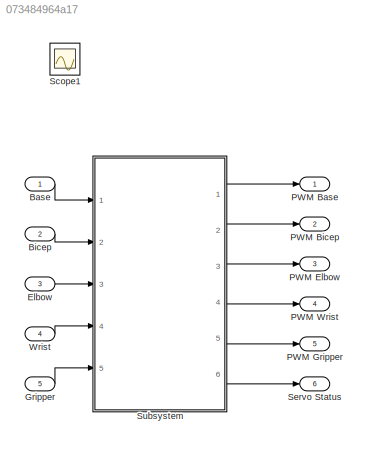
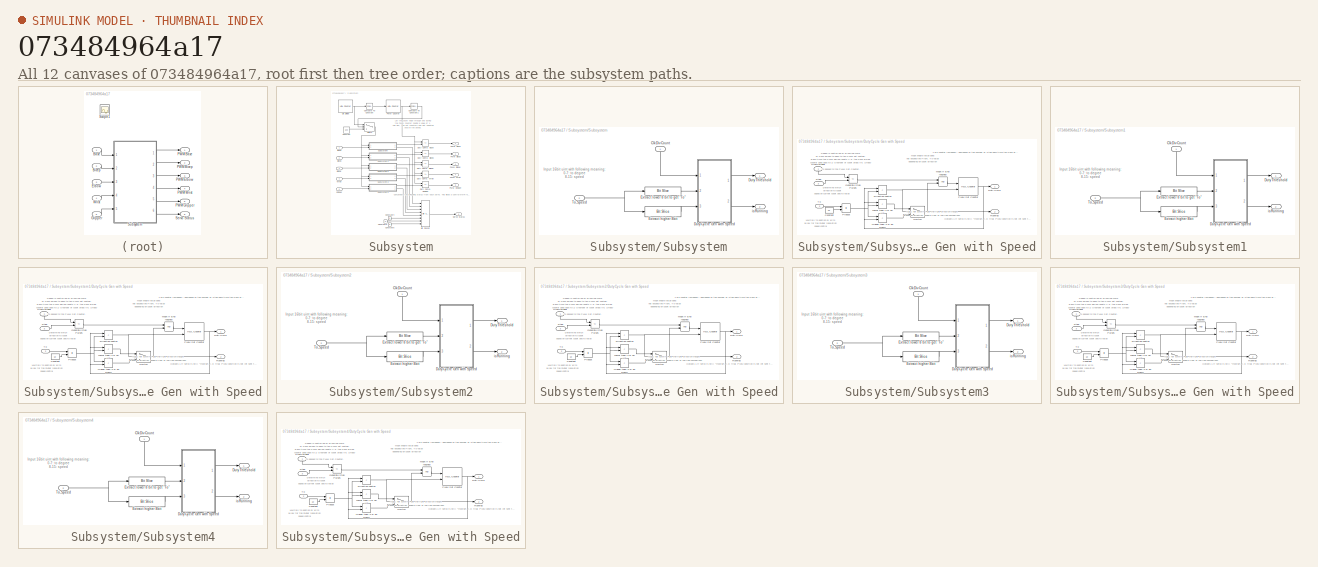
[diagram: thumbnail index - all 12 canvases of the model, root first then tree order]
MODEL slx_073484964a17
KIND model
BLOCK [Inport] Base
  IconDisplay = Port number
  OutDataTypeStr = uint16
  SampleTime = 1
BLOCK [Inport] Bicep
  IconDisplay = Port number
  OutDataTypeStr = uint16
  Port = 2
  SampleTime = 1
BLOCK [Inport] Elbow
  IconDisplay = Port number
  OutDataTypeStr = uint16
  Port = 3
  SampleTime = 1
BLOCK [Inport] Gripper
  IconDisplay = Port number
  OutDataTypeStr = uint16
  Port = 5
  SampleTime = 1
BLOCK [Outport] PWM Base
  IconDisplay = Port number
BLOCK [Outport] PWM Bicep
  IconDisplay = Port number
  Port = 2
BLOCK [Outport] PWM Elbow
  IconDisplay = Port number
  Port = 3
BLOCK [Outport] PWM Gripper
  IconDisplay = Port number
  Port = 5
BLOCK [Outport] PWM Wrist
  IconDisplay = Port number
  Port = 4
BLOCK [Scope] Scope1
  DataFormat = StructureWithTime
  Floating = off
  IOType = viewer
  NumInputPorts = 1
  Ports = []
  SampleTime = 0
  SaveName = ScopeData1
  ShowLegends = off
BLOCK [Outport] Servo Status
  IconDisplay = Port number
  Port = 6
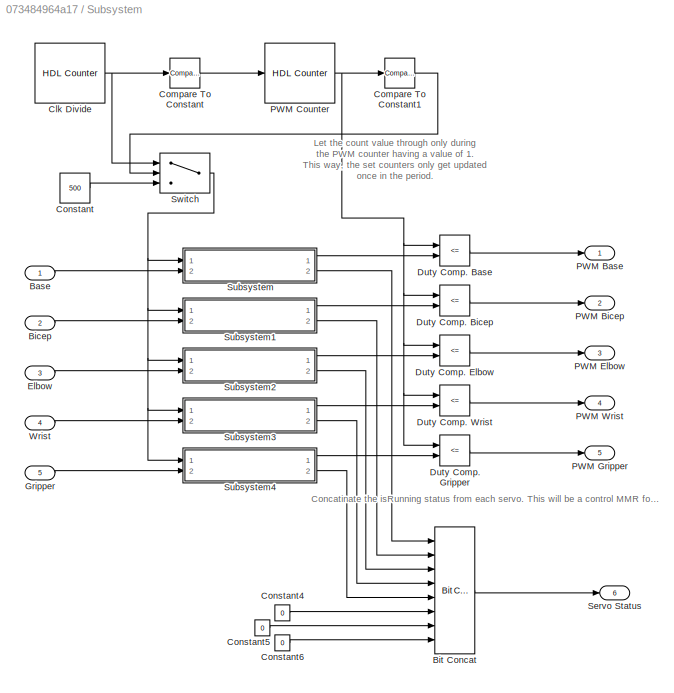
BLOCK [SubSystem] Subsystem
  Ports = [5, 6]
  RequestExecContextInheritance = off
  SystemSampleTime = 1
  TreatAsAtomicUnit = on
BLOCK [Inport] Subsystem/Base
  IconDisplay = Port number
  OutDataTypeStr = uint16
BLOCK [Inport] Subsystem/Bicep
  IconDisplay = Port number
  OutDataTypeStr = uint16
  Port = 2
BLOCK [Reference] Subsystem/Bit Concat  REF=hdlsllib/HDL Operations/Bit Concat
  Ports = [8, 1]
  SourceBlock = hdlsllib/HDL Operations/Bit Concat
  SourceType = Bit Concat
  numInputs = 8
BLOCK [Reference] Subsystem/Clk Divide  REF=hdlsllib/HDL Operations/HDL Counter
  CountDataType = Unsigned
  CountDirPort = off
  CountEnbPort = off
  CountFracLen = 0
  CountFrom = 1
  CountFromType = Initial value
  CountInit = 1
  CountLoadPort = off
  CountMax = 50
  CountResetPort = off
  CountSampTime = 1
  CountStep = 1
  CountType = Count limited
  CountWordLen = 16
  Ports = [0, 1]
  SourceBlock = hdlsllib/HDL Operations/HDL Counter
  SourceType = HDL Counter
BLOCK [Reference] Subsystem/Compare To Constant  REF=simulink/Logic and Bit
Operations/Compare
To Constant
  OutDataTypeStr = boolean
  Ports = [1, 1]
  SourceBlock = simulink/Logic and Bit\nOperations/Compare\nTo Constant
  SourceType = Compare To Constant
  ZeroCross = on
  const = 1
  relop = ==
BLOCK [Reference] Subsystem/Compare To Constant1  REF=simulink/Logic and Bit
Operations/Compare
To Constant
  OutDataTypeStr = boolean
  Ports = [1, 1]
  SourceBlock = simulink/Logic and Bit\nOperations/Compare\nTo Constant
  SourceType = Compare To Constant
  ZeroCross = on
  const = 1
  relop = ==
BLOCK [Constant] Subsystem/Constant
  OutDataTypeStr = int16
  Value = 500
BLOCK [Constant] Subsystem/Constant4
  OutDataTypeStr = boolean
  Value = 0
BLOCK [Constant] Subsystem/Constant5
  OutDataTypeStr = boolean
  Value = 0
BLOCK [Constant] Subsystem/Constant6
  OutDataTypeStr = boolean
  Value = 0
BLOCK [RelationalOperator] Subsystem/Duty Comp. Base
  InputSameDT = off
  Operator = <=
  OutDataTypeStr = boolean
  Ports = [2, 1]
BLOCK [RelationalOperator] Subsystem/Duty Comp. Bicep
  InputSameDT = off
  Operator = <=
  OutDataTypeStr = boolean
  Ports = [2, 1]
BLOCK [RelationalOperator] Subsystem/Duty Comp. Elbow
  InputSameDT = off
  Operator = <=
  OutDataTypeStr = boolean
  Ports = [2, 1]
BLOCK [RelationalOperator] Subsystem/Duty Comp. Gripper
  InputSameDT = off
  Operator = <=
  OutDataTypeStr = boolean
  Ports = [2, 1]
BLOCK [RelationalOperator] Subsystem/Duty Comp. Wrist
  InputSameDT = off
  Operator = <=
  OutDataTypeStr = boolean
  Ports = [2, 1]
BLOCK [Inport] Subsystem/Elbow
  IconDisplay = Port number
  OutDataTypeStr = uint16
  Port = 3
BLOCK [Inport] Subsystem/Gripper
  IconDisplay = Port number
  OutDataTypeStr = uint16
  Port = 5
BLOCK [Outport] Subsystem/PWM Base
  IconDisplay = Port number
BLOCK [Outport] Subsystem/PWM Bicep
  IconDisplay = Port number
  Port = 2
BLOCK [Reference] Subsystem/PWM Counter  REF=hdlsllib/HDL Operations/HDL Counter
  CountDataType = Unsigned
  CountDirPort = off
  CountEnbPort = on
  CountFracLen = 0
  CountFrom = 1
  CountFromType = Initial value
  CountInit = 1
  CountLoadPort = off
  CountMax = 20000
  CountResetPort = off
  CountSampTime = 1
  CountStep = 1
  CountType = Count limited
  CountWordLen = 16
  Ports = [1, 1]
  SourceBlock = hdlsllib/HDL Operations/HDL Counter
  SourceType = HDL Counter
BLOCK [Outport] Subsystem/PWM Elbow
  IconDisplay = Port number
  Port = 3
BLOCK [Outport] Subsystem/PWM Gripper
  IconDisplay = Port number
  Port = 5
BLOCK [Outport] Subsystem/PWM Wrist
  IconDisplay = Port number
  Port = 4
BLOCK [Outport] Subsystem/Servo Status 
  IconDisplay = Port number
  OutDataTypeStr = uint8
  Port = 6
BLOCK [SubSystem] Subsystem/Subsystem
  Ports = [2, 2]
  RequestExecContextInheritance = off
BLOCK [Inport] Subsystem/Subsystem/ClkDivCount
  IconDisplay = Port number
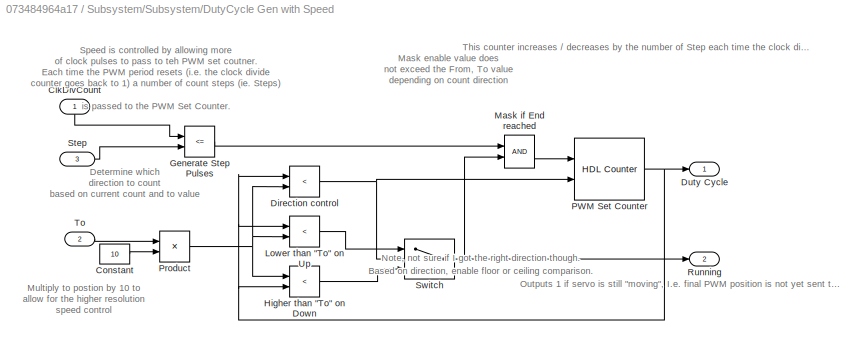
BLOCK [SubSystem] Subsystem/Subsystem/DutyCycle Gen with Speed
  Ports = [3, 2]
  RequestExecContextInheritance = off
BLOCK [Inport] Subsystem/Subsystem/DutyCycle Gen with Speed/ClkDivCount
  IconDisplay = Port number
BLOCK [Constant] Subsystem/Subsystem/DutyCycle Gen with Speed/Constant
  OutDataTypeStr = uint8
  SampleTime = Inf
  Value = 10
BLOCK [RelationalOperator] Subsystem/Subsystem/DutyCycle Gen with Speed/Direction control
  InputSameDT = off
  Operator = <
  OutDataTypeStr = boolean
  Ports = [2, 1]
BLOCK [Outport] Subsystem/Subsystem/DutyCycle Gen with Speed/Duty Cycle
  IconDisplay = Port number
BLOCK [RelationalOperator] Subsystem/Subsystem/DutyCycle Gen with Speed/Generate Step Pulses
  InputSameDT = off
  Operator = <=
  OutDataTypeStr = boolean
  Ports = [2, 1]
BLOCK [RelationalOperator] Subsystem/Subsystem/DutyCycle Gen with Speed/Higher than "To" on Down
  InputSameDT = off
  Operator = <
  OutDataTypeStr = boolean
  Ports = [2, 1]
BLOCK [RelationalOperator] Subsystem/Subsystem/DutyCycle Gen with Speed/Lower than "To" on Up
  InputSameDT = off
  Operator = <
  OutDataTypeStr = boolean
  Ports = [2, 1]
BLOCK [Logic] Subsystem/Subsystem/DutyCycle Gen with Speed/Mask if End reached
  AllPortsSameDT = off
  OutDataTypeStr = boolean
  Ports = [2, 1]
BLOCK [Reference] Subsystem/Subsystem/DutyCycle Gen with Speed/PWM Set Counter  REF=hdlsllib/HDL Operations/HDL Counter
  CountDataType = Unsigned
  CountDirPort = on
  CountEnbPort = on
  CountFracLen = 0
  CountFrom = 1500
  CountFromType = Initial value
  CountInit = 1500
  CountLoadPort = off
  CountMax = 256
  CountResetPort = off
  CountSampTime = 1
  CountStep = 1
  CountType = Free running
  CountWordLen = 16
  Ports = [2, 1]
  SourceBlock = hdlsllib/HDL Operations/HDL Counter
  SourceType = HDL Counter
BLOCK [Product] Subsystem/Subsystem/DutyCycle Gen with Speed/Product
  InputSameDT = off
  OutDataTypeStr = uint16
  Ports = [2, 1]
  RndMeth = Floor
  SaturateOnIntegerOverflow = off
BLOCK [Outport] Subsystem/Subsystem/DutyCycle Gen with Speed/Running
  IconDisplay = Port number
  Port = 2
BLOCK [Inport] Subsystem/Subsystem/DutyCycle Gen with Speed/Step
  IconDisplay = Port number
  OutDataTypeStr = uint8
  Port = 3
BLOCK [Switch] Subsystem/Subsystem/DutyCycle Gen with Speed/Switch
  Criteria = u2 ~= 0
  InputSameDT = off
  SaturateOnIntegerOverflow = off
BLOCK [Inport] Subsystem/Subsystem/DutyCycle Gen with Speed/To
  IconDisplay = Port number
  OutDataTypeStr = uint8
  Port = 2
BLOCK [Outport] Subsystem/Subsystem/DutyThreshold
  IconDisplay = Port number
BLOCK [Reference] Subsystem/Subsystem/Extract higher 8bit  REF=hdlsllib/HDL Operations/Bit Slice
  Ports = [1, 1]
  SourceBlock = hdlsllib/HDL Operations/Bit Slice
  SourceType = Bit Slice
  lidx = 15
  ridx = 8
BLOCK [Reference] Subsystem/Subsystem/Extract lower 8 bit to get "To"  REF=hdlsllib/HDL Operations/Bit Slice
  Ports = [1, 1]
  SourceBlock = hdlsllib/HDL Operations/Bit Slice
  SourceType = Bit Slice
  lidx = 7
  ridx = 0
BLOCK [Inport] Subsystem/Subsystem/To,Speed
  IconDisplay = Port number
  Port = 2
BLOCK [Outport] Subsystem/Subsystem/isRunning
  IconDisplay = Port number
  Port = 2
BLOCK [SubSystem] Subsystem/Subsystem1
  Ports = [2, 2]
  RequestExecContextInheritance = off
BLOCK [Inport] Subsystem/Subsystem1/ClkDivCount
  IconDisplay = Port number
BLOCK [SubSystem] Subsystem/Subsystem1/DutyCycle Gen with Speed
  Ports = [3, 2]
  RequestExecContextInheritance = off
BLOCK [Inport] Subsystem/Subsystem1/DutyCycle Gen with Speed/ClkDivCount
  IconDisplay = Port number
BLOCK [Constant] Subsystem/Subsystem1/DutyCycle Gen with Speed/Constant
  OutDataTypeStr = uint8
  SampleTime = Inf
  Value = 10
BLOCK [RelationalOperator] Subsystem/Subsystem1/DutyCycle Gen with Speed/Direction control
  InputSameDT = off
  Operator = <
  OutDataTypeStr = boolean
  Ports = [2, 1]
BLOCK [Outport] Subsystem/Subsystem1/DutyCycle Gen with Speed/Duty Cycle
  IconDisplay = Port number
BLOCK [RelationalOperator] Subsystem/Subsystem1/DutyCycle Gen with Speed/Generate Step Pulses
  InputSameDT = off
  Operator = <=
  OutDataTypeStr = boolean
  Ports = [2, 1]
BLOCK [RelationalOperator] Subsystem/Subsystem1/DutyCycle Gen with Speed/Higher than "To" on Down
  InputSameDT = off
  Operator = <
  OutDataTypeStr = boolean
  Ports = [2, 1]
BLOCK [RelationalOperator] Subsystem/Subsystem1/DutyCycle Gen with Speed/Lower than "To" on Up
  InputSameDT = off
  Operator = <
  OutDataTypeStr = boolean
  Ports = [2, 1]
BLOCK [Logic] Subsystem/Subsystem1/DutyCycle Gen with Speed/Mask if End reached
  AllPortsSameDT = off
  OutDataTypeStr = boolean
  Ports = [2, 1]
BLOCK [Reference] Subsystem/Subsystem1/DutyCycle Gen with Speed/PWM Set Counter  REF=hdlsllib/HDL Operations/HDL Counter
  CountDataType = Unsigned
  CountDirPort = on
  CountEnbPort = on
  CountFracLen = 0
  CountFrom = 1500
  CountFromType = Initial value
  CountInit = 1500
  CountLoadPort = off
  CountMax = 256
  CountResetPort = off
  CountSampTime = 1
  CountStep = 1
  CountType = Free running
  CountWordLen = 16
  Ports = [2, 1]
  SourceBlock = hdlsllib/HDL Operations/HDL Counter
  SourceType = HDL Counter
BLOCK [Product] Subsystem/Subsystem1/DutyCycle Gen with Speed/Product
  InputSameDT = off
  OutDataTypeStr = uint16
  Ports = [2, 1]
  RndMeth = Floor
  SaturateOnIntegerOverflow = off
BLOCK [Outport] Subsystem/Subsystem1/DutyCycle Gen with Speed/Running
  IconDisplay = Port number
  Port = 2
BLOCK [Inport] Subsystem/Subsystem1/DutyCycle Gen with Speed/Step
  IconDisplay = Port number
  OutDataTypeStr = uint8
  Port = 3
BLOCK [Switch] Subsystem/Subsystem1/DutyCycle Gen with Speed/Switch
  Criteria = u2 ~= 0
  InputSameDT = off
  SaturateOnIntegerOverflow = off
BLOCK [Inport] Subsystem/Subsystem1/DutyCycle Gen with Speed/To
  IconDisplay = Port number
  OutDataTypeStr = uint8
  Port = 2
BLOCK [Outport] Subsystem/Subsystem1/DutyThreshold
  IconDisplay = Port number
BLOCK [Reference] Subsystem/Subsystem1/Extract higher 8bit  REF=hdlsllib/HDL Operations/Bit Slice
  Ports = [1, 1]
  SourceBlock = hdlsllib/HDL Operations/Bit Slice
  SourceType = Bit Slice
  lidx = 15
  ridx = 8
BLOCK [Reference] Subsystem/Subsystem1/Extract lower 8 bit to get "To"  REF=hdlsllib/HDL Operations/Bit Slice
  Ports = [1, 1]
  SourceBlock = hdlsllib/HDL Operations/Bit Slice
  SourceType = Bit Slice
  lidx = 7
  ridx = 0
BLOCK [Inport] Subsystem/Subsystem1/To,Speed
  IconDisplay = Port number
  Port = 2
BLOCK [Outport] Subsystem/Subsystem1/isRunning
  IconDisplay = Port number
  Port = 2
BLOCK [SubSystem] Subsystem/Subsystem2
  Ports = [2, 2]
  RequestExecContextInheritance = off
BLOCK [Inport] Subsystem/Subsystem2/ClkDivCount
  IconDisplay = Port number
BLOCK [SubSystem] Subsystem/Subsystem2/DutyCycle Gen with Speed
  Ports = [3, 2]
  RequestExecContextInheritance = off
BLOCK [Inport] Subsystem/Subsystem2/DutyCycle Gen with Speed/ClkDivCount
  IconDisplay = Port number
BLOCK [Constant] Subsystem/Subsystem2/DutyCycle Gen with Speed/Constant
  OutDataTypeStr = uint8
  SampleTime = Inf
  Value = 10
BLOCK [RelationalOperator] Subsystem/Subsystem2/DutyCycle Gen with Speed/Direction control
  InputSameDT = off
  Operator = <
  OutDataTypeStr = boolean
  Ports = [2, 1]
BLOCK [Outport] Subsystem/Subsystem2/DutyCycle Gen with Speed/Duty Cycle
  IconDisplay = Port number
BLOCK [RelationalOperator] Subsystem/Subsystem2/DutyCycle Gen with Speed/Generate Step Pulses
  InputSameDT = off
  Operator = <=
  OutDataTypeStr = boolean
  Ports = [2, 1]
BLOCK [RelationalOperator] Subsystem/Subsystem2/DutyCycle Gen with Speed/Higher than "To" on Down
  InputSameDT = off
  Operator = <
  OutDataTypeStr = boolean
  Ports = [2, 1]
BLOCK [RelationalOperator] Subsystem/Subsystem2/DutyCycle Gen with Speed/Lower than "To" on Up
  InputSameDT = off
  Operator = <
  OutDataTypeStr = boolean
  Ports = [2, 1]
BLOCK [Logic] Subsystem/Subsystem2/DutyCycle Gen with Speed/Mask if End reached
  AllPortsSameDT = off
  OutDataTypeStr = boolean
  Ports = [2, 1]
BLOCK [Reference] Subsystem/Subsystem2/DutyCycle Gen with Speed/PWM Set Counter  REF=hdlsllib/HDL Operations/HDL Counter
  CountDataType = Unsigned
  CountDirPort = on
  CountEnbPort = on
  CountFracLen = 0
  CountFrom = 1500
  CountFromType = Initial value
  CountInit = 1500
  CountLoadPort = off
  CountMax = 256
  CountResetPort = off
  CountSampTime = 1
  CountStep = 1
  CountType = Free running
  CountWordLen = 16
  Ports = [2, 1]
  SourceBlock = hdlsllib/HDL Operations/HDL Counter
  SourceType = HDL Counter
BLOCK [Product] Subsystem/Subsystem2/DutyCycle Gen with Speed/Product
  InputSameDT = off
  OutDataTypeStr = uint16
  Ports = [2, 1]
  RndMeth = Floor
  SaturateOnIntegerOverflow = off
BLOCK [Outport] Subsystem/Subsystem2/DutyCycle Gen with Speed/Running
  IconDisplay = Port number
  Port = 2
BLOCK [Inport] Subsystem/Subsystem2/DutyCycle Gen with Speed/Step
  IconDisplay = Port number
  OutDataTypeStr = uint8
  Port = 3
BLOCK [Switch] Subsystem/Subsystem2/DutyCycle Gen with Speed/Switch
  Criteria = u2 ~= 0
  InputSameDT = off
  SaturateOnIntegerOverflow = off
BLOCK [Inport] Subsystem/Subsystem2/DutyCycle Gen with Speed/To
  IconDisplay = Port number
  OutDataTypeStr = uint8
  Port = 2
BLOCK [Outport] Subsystem/Subsystem2/DutyThreshold
  IconDisplay = Port number
BLOCK [Reference] Subsystem/Subsystem2/Extract higher 8bit  REF=hdlsllib/HDL Operations/Bit Slice
  Ports = [1, 1]
  SourceBlock = hdlsllib/HDL Operations/Bit Slice
  SourceType = Bit Slice
  lidx = 15
  ridx = 8
BLOCK [Reference] Subsystem/Subsystem2/Extract lower 8 bit to get "To"  REF=hdlsllib/HDL Operations/Bit Slice
  Ports = [1, 1]
  SourceBlock = hdlsllib/HDL Operations/Bit Slice
  SourceType = Bit Slice
  lidx = 7
  ridx = 0
BLOCK [Inport] Subsystem/Subsystem2/To,Speed
  IconDisplay = Port number
  Port = 2
BLOCK [Outport] Subsystem/Subsystem2/isRunning
  IconDisplay = Port number
  Port = 2
BLOCK [SubSystem] Subsystem/Subsystem3
  Ports = [2, 2]
  RequestExecContextInheritance = off
BLOCK [Inport] Subsystem/Subsystem3/ClkDivCount
  IconDisplay = Port number
BLOCK [SubSystem] Subsystem/Subsystem3/DutyCycle Gen with Speed
  Ports = [3, 2]
  RequestExecContextInheritance = off
BLOCK [Inport] Subsystem/Subsystem3/DutyCycle Gen with Speed/ClkDivCount
  IconDisplay = Port number
BLOCK [Constant] Subsystem/Subsystem3/DutyCycle Gen with Speed/Constant
  OutDataTypeStr = uint8
  SampleTime = Inf
  Value = 10
BLOCK [RelationalOperator] Subsystem/Subsystem3/DutyCycle Gen with Speed/Direction control
  InputSameDT = off
  Operator = <
  OutDataTypeStr = boolean
  Ports = [2, 1]
BLOCK [Outport] Subsystem/Subsystem3/DutyCycle Gen with Speed/Duty Cycle
  IconDisplay = Port number
BLOCK [RelationalOperator] Subsystem/Subsystem3/DutyCycle Gen with Speed/Generate Step Pulses
  InputSameDT = off
  Operator = <=
  OutDataTypeStr = boolean
  Ports = [2, 1]
BLOCK [RelationalOperator] Subsystem/Subsystem3/DutyCycle Gen with Speed/Higher than "To" on Down
  InputSameDT = off
  Operator = <
  OutDataTypeStr = boolean
  Ports = [2, 1]
BLOCK [RelationalOperator] Subsystem/Subsystem3/DutyCycle Gen with Speed/Lower than "To" on Up
  InputSameDT = off
  Operator = <
  OutDataTypeStr = boolean
  Ports = [2, 1]
BLOCK [Logic] Subsystem/Subsystem3/DutyCycle Gen with Speed/Mask if End reached
  AllPortsSameDT = off
  OutDataTypeStr = boolean
  Ports = [2, 1]
BLOCK [Reference] Subsystem/Subsystem3/DutyCycle Gen with Speed/PWM Set Counter  REF=hdlsllib/HDL Operations/HDL Counter
  CountDataType = Unsigned
  CountDirPort = on
  CountEnbPort = on
  CountFracLen = 0
  CountFrom = 1500
  CountFromType = Initial value
  CountInit = 1500
  CountLoadPort = off
  CountMax = 256
  CountResetPort = off
  CountSampTime = 1
  CountStep = 1
  CountType = Free running
  CountWordLen = 16
  Ports = [2, 1]
  SourceBlock = hdlsllib/HDL Operations/HDL Counter
  SourceType = HDL Counter
BLOCK [Product] Subsystem/Subsystem3/DutyCycle Gen with Speed/Product
  InputSameDT = off
  OutDataTypeStr = uint16
  Ports = [2, 1]
  RndMeth = Floor
  SaturateOnIntegerOverflow = off
BLOCK [Outport] Subsystem/Subsystem3/DutyCycle Gen with Speed/Running
  IconDisplay = Port number
  Port = 2
BLOCK [Inport] Subsystem/Subsystem3/DutyCycle Gen with Speed/Step
  IconDisplay = Port number
  OutDataTypeStr = uint8
  Port = 3
BLOCK [Switch] Subsystem/Subsystem3/DutyCycle Gen with Speed/Switch
  Criteria = u2 ~= 0
  InputSameDT = off
  SaturateOnIntegerOverflow = off
BLOCK [Inport] Subsystem/Subsystem3/DutyCycle Gen with Speed/To
  IconDisplay = Port number
  OutDataTypeStr = uint8
  Port = 2
BLOCK [Outport] Subsystem/Subsystem3/DutyThreshold
  IconDisplay = Port number
BLOCK [Reference] Subsystem/Subsystem3/Extract higher 8bit  REF=hdlsllib/HDL Operations/Bit Slice
  Ports = [1, 1]
  SourceBlock = hdlsllib/HDL Operations/Bit Slice
  SourceType = Bit Slice
  lidx = 15
  ridx = 8
BLOCK [Reference] Subsystem/Subsystem3/Extract lower 8 bit to get "To"  REF=hdlsllib/HDL Operations/Bit Slice
  Ports = [1, 1]
  SourceBlock = hdlsllib/HDL Operations/Bit Slice
  SourceType = Bit Slice
  lidx = 7
  ridx = 0
BLOCK [Inport] Subsystem/Subsystem3/To,Speed
  IconDisplay = Port number
  Port = 2
BLOCK [Outport] Subsystem/Subsystem3/isRunning
  IconDisplay = Port number
  Port = 2
BLOCK [SubSystem] Subsystem/Subsystem4
  Ports = [2, 2]
  RequestExecContextInheritance = off
BLOCK [Inport] Subsystem/Subsystem4/ClkDivCount
  IconDisplay = Port number
BLOCK [SubSystem] Subsystem/Subsystem4/DutyCycle Gen with Speed
  Ports = [3, 2]
  RequestExecContextInheritance = off
BLOCK [Inport] Subsystem/Subsystem4/DutyCycle Gen with Speed/ClkDivCount
  IconDisplay = Port number
BLOCK [Constant] Subsystem/Subsystem4/DutyCycle Gen with Speed/Constant
  OutDataTypeStr = uint8
  SampleTime = Inf
  Value = 10
BLOCK [RelationalOperator] Subsystem/Subsystem4/DutyCycle Gen with Speed/Direction control
  InputSameDT = off
  Operator = <
  OutDataTypeStr = boolean
  Ports = [2, 1]
BLOCK [Outport] Subsystem/Subsystem4/DutyCycle Gen with Speed/Duty Cycle
  IconDisplay = Port number
BLOCK [RelationalOperator] Subsystem/Subsystem4/DutyCycle Gen with Speed/Generate Step Pulses
  InputSameDT = off
  Operator = <=
  OutDataTypeStr = boolean
  Ports = [2, 1]
BLOCK [RelationalOperator] Subsystem/Subsystem4/DutyCycle Gen with Speed/Higher than "To" on Down
  InputSameDT = off
  Operator = <
  OutDataTypeStr = boolean
  Ports = [2, 1]
BLOCK [RelationalOperator] Subsystem/Subsystem4/DutyCycle Gen with Speed/Lower than "To" on Up
  InputSameDT = off
  Operator = <
  OutDataTypeStr = boolean
  Ports = [2, 1]
BLOCK [Logic] Subsystem/Subsystem4/DutyCycle Gen with Speed/Mask if End reached
  AllPortsSameDT = off
  OutDataTypeStr = boolean
  Ports = [2, 1]
BLOCK [Reference] Subsystem/Subsystem4/DutyCycle Gen with Speed/PWM Set Counter  REF=hdlsllib/HDL Operations/HDL Counter
  CountDataType = Unsigned
  CountDirPort = on
  CountEnbPort = on
  CountFracLen = 0
  CountFrom = 1500
  CountFromType = Initial value
  CountInit = 1500
  CountLoadPort = off
  CountMax = 256
  CountResetPort = off
  CountSampTime = 1
  CountStep = 1
  CountType = Free running
  CountWordLen = 16
  Ports = [2, 1]
  SourceBlock = hdlsllib/HDL Operations/HDL Counter
  SourceType = HDL Counter
BLOCK [Product] Subsystem/Subsystem4/DutyCycle Gen with Speed/Product
  InputSameDT = off
  OutDataTypeStr = uint16
  Ports = [2, 1]
  RndMeth = Floor
  SaturateOnIntegerOverflow = off
BLOCK [Outport] Subsystem/Subsystem4/DutyCycle Gen with Speed/Running
  IconDisplay = Port number
  Port = 2
BLOCK [Inport] Subsystem/Subsystem4/DutyCycle Gen with Speed/Step
  IconDisplay = Port number
  OutDataTypeStr = uint8
  Port = 3
BLOCK [Switch] Subsystem/Subsystem4/DutyCycle Gen with Speed/Switch
  Criteria = u2 ~= 0
  InputSameDT = off
  SaturateOnIntegerOverflow = off
BLOCK [Inport] Subsystem/Subsystem4/DutyCycle Gen with Speed/To
  IconDisplay = Port number
  OutDataTypeStr = uint8
  Port = 2
BLOCK [Outport] Subsystem/Subsystem4/DutyThreshold
  IconDisplay = Port number
BLOCK [Reference] Subsystem/Subsystem4/Extract higher 8bit  REF=hdlsllib/HDL Operations/Bit Slice
  Ports = [1, 1]
  SourceBlock = hdlsllib/HDL Operations/Bit Slice
  SourceType = Bit Slice
  lidx = 15
  ridx = 8
BLOCK [Reference] Subsystem/Subsystem4/Extract lower 8 bit to get "To"  REF=hdlsllib/HDL Operations/Bit Slice
  Ports = [1, 1]
  SourceBlock = hdlsllib/HDL Operations/Bit Slice
  SourceType = Bit Slice
  lidx = 7
  ridx = 0
BLOCK [Inport] Subsystem/Subsystem4/To,Speed
  IconDisplay = Port number
  Port = 2
BLOCK [Outport] Subsystem/Subsystem4/isRunning
  IconDisplay = Port number
  Port = 2
BLOCK [Switch] Subsystem/Switch
  Criteria = u2 > Threshold
  InputSameDT = off
  SaturateOnIntegerOverflow = off
BLOCK [Inport] Subsystem/Wrist
  IconDisplay = Port number
  OutDataTypeStr = uint16
  Port = 4
BLOCK [Inport] Wrist
  IconDisplay = Port number
  OutDataTypeStr = uint16
  Port = 4
  SampleTime = 1
ANNOTATION Subsystem: Concatinate the isRunning status from each servo. This will be a control MMR for the SW to read if final postion is reached -> Hence, if new motion can be sent.
ANNOTATION Subsystem: Let the count value through only during the PWM counter having a value of 1. This way, the set counters only get updated once in the period.
ANNOTATION Subsystem/Subsystem: Input 16bit uint with following meaning: 0-7: to degree 8-15: speed
ANNOTATION Subsystem/Subsystem/DutyCycle Gen with Speed: Based on direction, enable floor or ceiling comparison. Note, not sure if I got the right direction though.
ANNOTATION Subsystem/Subsystem/DutyCycle Gen with Speed: Determine which direction to count based on current count and to value
ANNOTATION Subsystem/Subsystem/DutyCycle Gen with Speed: Mask enable value does not exceed the From, To value depending on count direction
ANNOTATION Subsystem/Subsystem/DutyCycle Gen with Speed: Multiply to postion by 10 to allow for the higher resolution speed control
ANNOTATION Subsystem/Subsystem/DutyCycle Gen with Speed: Outputs 1 if servo is still "moving", I.e. final PWM position is not yet sent to servo.
ANNOTATION Subsystem/Subsystem/DutyCycle Gen with Speed: Speed is controlled by allowing more of clock pulses to pass to teh PWM set coutner. Each time the PWM period resets (i.e. the clock divide counter goes back to 1) a number of count steps (ie. Steps) is passed to the PWM Set Counter.
ANNOTATION Subsystem/Subsystem/DutyCycle Gen with Speed: This counter increases / decreases by the number of Step each time the clock divide counter rolls back to 0. By changing the duty cycle a bit cycle in each period, we can show control "speed"
ANNOTATION Subsystem/Subsystem1: Input 16bit uint with following meaning: 0-7: to degree 8-15: speed
ANNOTATION Subsystem/Subsystem1/DutyCycle Gen with Speed: Based on direction, enable floor or ceiling comparison. Note, not sure if I got the right direction though.
ANNOTATION Subsystem/Subsystem1/DutyCycle Gen with Speed: Determine which direction to count based on current count and to value
ANNOTATION Subsystem/Subsystem1/DutyCycle Gen with Speed: Mask enable value does not exceed the From, To value depending on count direction
ANNOTATION Subsystem/Subsystem1/DutyCycle Gen with Speed: Multiply to postion by 10 to allow for the higher resolution speed control
ANNOTATION Subsystem/Subsystem1/DutyCycle Gen with Speed: Outputs 1 if servo is still "moving", I.e. final PWM position is not yet sent to servo.
ANNOTATION Subsystem/Subsystem1/DutyCycle Gen with Speed: Speed is controlled by allowing more of clock pulses to pass to teh PWM set coutner. Each time the PWM period resets (i.e. the clock divide counter goes back to 1) a number of count steps (ie. Steps) is passed to the PWM Set Counter.
ANNOTATION Subsystem/Subsystem1/DutyCycle Gen with Speed: This counter increases / decreases by the number of Step each time the clock divide counter rolls back to 0. By changing the duty cycle a bit cycle in each period, we can show control "speed"
ANNOTATION Subsystem/Subsystem2: Input 16bit uint with following meaning: 0-7: to degree 8-15: speed
ANNOTATION Subsystem/Subsystem2/DutyCycle Gen with Speed: Based on direction, enable floor or ceiling comparison. Note, not sure if I got the right direction though.
ANNOTATION Subsystem/Subsystem2/DutyCycle Gen with Speed: Determine which direction to count based on current count and to value
ANNOTATION Subsystem/Subsystem2/DutyCycle Gen with Speed: Mask enable value does not exceed the From, To value depending on count direction
ANNOTATION Subsystem/Subsystem2/DutyCycle Gen with Speed: Multiply to postion by 10 to allow for the higher resolution speed control
ANNOTATION Subsystem/Subsystem2/DutyCycle Gen with Speed: Outputs 1 if servo is still "moving", I.e. final PWM position is not yet sent to servo.
ANNOTATION Subsystem/Subsystem2/DutyCycle Gen with Speed: Speed is controlled by allowing more of clock pulses to pass to teh PWM set coutner. Each time the PWM period resets (i.e. the clock divide counter goes back to 1) a number of count steps (ie. Steps) is passed to the PWM Set Counter.
ANNOTATION Subsystem/Subsystem2/DutyCycle Gen with Speed: This counter increases / decreases by the number of Step each time the clock divide counter rolls back to 0. By changing the duty cycle a bit cycle in each period, we can show control "speed"
ANNOTATION Subsystem/Subsystem3: Input 16bit uint with following meaning: 0-7: to degree 8-15: speed
ANNOTATION Subsystem/Subsystem3/DutyCycle Gen with Speed: Based on direction, enable floor or ceiling comparison. Note, not sure if I got the right direction though.
ANNOTATION Subsystem/Subsystem3/DutyCycle Gen with Speed: Determine which direction to count based on current count and to value
ANNOTATION Subsystem/Subsystem3/DutyCycle Gen with Speed: Mask enable value does not exceed the From, To value depending on count direction
ANNOTATION Subsystem/Subsystem3/DutyCycle Gen with Speed: Multiply to postion by 10 to allow for the higher resolution speed control
ANNOTATION Subsystem/Subsystem3/DutyCycle Gen with Speed: Outputs 1 if servo is still "moving", I.e. final PWM position is not yet sent to servo.
ANNOTATION Subsystem/Subsystem3/DutyCycle Gen with Speed: Speed is controlled by allowing more of clock pulses to pass to teh PWM set coutner. Each time the PWM period resets (i.e. the clock divide counter goes back to 1) a number of count steps (ie. Steps) is passed to the PWM Set Counter.
ANNOTATION Subsystem/Subsystem3/DutyCycle Gen with Speed: This counter increases / decreases by the number of Step each time the clock divide counter rolls back to 0. By changing the duty cycle a bit cycle in each period, we can show control "speed"
ANNOTATION Subsystem/Subsystem4: Input 16bit uint with following meaning: 0-7: to degree 8-15: speed
ANNOTATION Subsystem/Subsystem4/DutyCycle Gen with Speed: Based on direction, enable floor or ceiling comparison. Note, not sure if I got the right direction though.
ANNOTATION Subsystem/Subsystem4/DutyCycle Gen with Speed: Determine which direction to count based on current count and to value
ANNOTATION Subsystem/Subsystem4/DutyCycle Gen with Speed: Mask enable value does not exceed the From, To value depending on count direction
ANNOTATION Subsystem/Subsystem4/DutyCycle Gen with Speed: Multiply to postion by 10 to allow for the higher resolution speed control
ANNOTATION Subsystem/Subsystem4/DutyCycle Gen with Speed: Outputs 1 if servo is still "moving", I.e. final PWM position is not yet sent to servo.
ANNOTATION Subsystem/Subsystem4/DutyCycle Gen with Speed: Speed is controlled by allowing more of clock pulses to pass to teh PWM set coutner. Each time the PWM period resets (i.e. the clock divide counter goes back to 1) a number of count steps (ie. Steps) is passed to the PWM Set Counter.
ANNOTATION Subsystem/Subsystem4/DutyCycle Gen with Speed: This counter increases / decreases by the number of Step each time the clock divide counter rolls back to 0. By changing the duty cycle a bit cycle in each period, we can show control "speed"
LINE Base:1 -> Subsystem:1
LINE Bicep:1 -> Subsystem:2
LINE Elbow:1 -> Subsystem:3
LINE Gripper:1 -> Subsystem:5
LINE Subsystem/Base:1 -> Subsystem/Subsystem:2
LINE Subsystem/Bicep:1 -> Subsystem/Subsystem1:2
LINE Subsystem/Bit Concat:1 -> Subsystem/Servo Status :1
NET Subsystem/Clk Divide:1 -> Subsystem/Compare To Constant:1, Subsystem/Switch:1
LINE Subsystem/Compare To Constant1:1 -> Subsystem/Switch:2
LINE Subsystem/Compare To Constant:1 -> Subsystem/PWM Counter:1
LINE Subsystem/Constant4:1 -> Subsystem/Bit Concat:6
LINE Subsystem/Constant5:1 -> Subsystem/Bit Concat:7
LINE Subsystem/Constant6:1 -> Subsystem/Bit Concat:8
LINE Subsystem/Constant:1 -> Subsystem/Switch:3
LINE Subsystem/Duty Comp. Base:1 -> Subsystem/PWM Base:1
LINE Subsystem/Duty Comp. Bicep:1 -> Subsystem/PWM Bicep:1
LINE Subsystem/Duty Comp. Elbow:1 -> Subsystem/PWM Elbow:1
LINE Subsystem/Duty Comp. Gripper:1 -> Subsystem/PWM Gripper:1
LINE Subsystem/Duty Comp. Wrist:1 -> Subsystem/PWM Wrist:1
LINE Subsystem/Elbow:1 -> Subsystem/Subsystem2:2
LINE Subsystem/Gripper:1 -> Subsystem/Subsystem4:2
NET Subsystem/PWM Counter:1 -> Subsystem/Compare To Constant1:1, Subsystem/Duty Comp. Base:1, Subsystem/Duty Comp. Bicep:1, Subsystem/Duty Comp. Elbow:1, Subsystem/Duty Comp. Gripper:1, Subsystem/Duty Comp. Wrist:1
LINE Subsystem/Subsystem/ClkDivCount:1 -> Subsystem/Subsystem/DutyCycle Gen with Speed:1
LINE Subsystem/Subsystem/DutyCycle Gen with Speed/ClkDivCount:1 -> Subsystem/Subsystem/DutyCycle Gen with Speed/Generate Step Pulses:1
LINE Subsystem/Subsystem/DutyCycle Gen with Speed/Constant:1 -> Subsystem/Subsystem/DutyCycle Gen with Speed/Product:2
NET Subsystem/Subsystem/DutyCycle Gen with Speed/Direction control:1 -> Subsystem/Subsystem/DutyCycle Gen with Speed/PWM Set Counter:2, Subsystem/Subsystem/DutyCycle Gen with Speed/Switch:2
LINE Subsystem/Subsystem/DutyCycle Gen with Speed/Generate Step Pulses:1 -> Subsystem/Subsystem/DutyCycle Gen with Speed/Mask if End reached:1
LINE Subsystem/Subsystem/DutyCycle Gen with Speed/Higher than "To" on Down:1 -> Subsystem/Subsystem/DutyCycle Gen with Speed/Switch:3
LINE Subsystem/Subsystem/DutyCycle Gen with Speed/Lower than "To" on Up:1 -> Subsystem/Subsystem/DutyCycle Gen with Speed/Switch:1
LINE Subsystem/Subsystem/DutyCycle Gen with Speed/Mask if End reached:1 -> Subsystem/Subsystem/DutyCycle Gen with Speed/PWM Set Counter:1
NET Subsystem/Subsystem/DutyCycle Gen with Speed/PWM Set Counter:1 -> Subsystem/Subsystem/DutyCycle Gen with Speed/Direction control:1, Subsystem/Subsystem/DutyCycle Gen with Speed/Duty Cycle:1, Subsystem/Subsystem/DutyCycle Gen with Speed/Higher than "To" on Down:2, Subsystem/Subsystem/DutyCycle Gen with Speed/Lower than "To" on Up:1
NET Subsystem/Subsystem/DutyCycle Gen with Speed/Product:1 -> Subsystem/Subsystem/DutyCycle Gen with Speed/Direction control:2, Subsystem/Subsystem/DutyCycle Gen with Speed/Higher than "To" on Down:1, Subsystem/Subsystem/DutyCycle Gen with Speed/Lower than "To" on Up:2
LINE Subsystem/Subsystem/DutyCycle Gen with Speed/Step:1 -> Subsystem/Subsystem/DutyCycle Gen with Speed/Generate Step Pulses:2
NET Subsystem/Subsystem/DutyCycle Gen with Speed/Switch:1 -> Subsystem/Subsystem/DutyCycle Gen with Speed/Mask if End reached:2, Subsystem/Subsystem/DutyCycle Gen with Speed/Running:1
LINE Subsystem/Subsystem/DutyCycle Gen with Speed/To:1 -> Subsystem/Subsystem/DutyCycle Gen with Speed/Product:1
LINE Subsystem/Subsystem/DutyCycle Gen with Speed:1 -> Subsystem/Subsystem/DutyThreshold:1
LINE Subsystem/Subsystem/DutyCycle Gen with Speed:2 -> Subsystem/Subsystem/isRunning:1
LINE Subsystem/Subsystem/Extract higher 8bit:1 -> Subsystem/Subsystem/DutyCycle Gen with Speed:3
LINE Subsystem/Subsystem/Extract lower 8 bit to get "To":1 -> Subsystem/Subsystem/DutyCycle Gen with Speed:2
NET Subsystem/Subsystem/To,Speed:1 -> Subsystem/Subsystem/Extract higher 8bit:1, Subsystem/Subsystem/Extract lower 8 bit to get "To":1
LINE Subsystem/Subsystem1/ClkDivCount:1 -> Subsystem/Subsystem1/DutyCycle Gen with Speed:1
LINE Subsystem/Subsystem1/DutyCycle Gen with Speed/ClkDivCount:1 -> Subsystem/Subsystem1/DutyCycle Gen with Speed/Generate Step Pulses:1
LINE Subsystem/Subsystem1/DutyCycle Gen with Speed/Constant:1 -> Subsystem/Subsystem1/DutyCycle Gen with Speed/Product:2
NET Subsystem/Subsystem1/DutyCycle Gen with Speed/Direction control:1 -> Subsystem/Subsystem1/DutyCycle Gen with Speed/PWM Set Counter:2, Subsystem/Subsystem1/DutyCycle Gen with Speed/Switch:2
LINE Subsystem/Subsystem1/DutyCycle Gen with Speed/Generate Step Pulses:1 -> Subsystem/Subsystem1/DutyCycle Gen with Speed/Mask if End reached:1
LINE Subsystem/Subsystem1/DutyCycle Gen with Speed/Higher than "To" on Down:1 -> Subsystem/Subsystem1/DutyCycle Gen with Speed/Switch:3
LINE Subsystem/Subsystem1/DutyCycle Gen with Speed/Lower than "To" on Up:1 -> Subsystem/Subsystem1/DutyCycle Gen with Speed/Switch:1
LINE Subsystem/Subsystem1/DutyCycle Gen with Speed/Mask if End reached:1 -> Subsystem/Subsystem1/DutyCycle Gen with Speed/PWM Set Counter:1
NET Subsystem/Subsystem1/DutyCycle Gen with Speed/PWM Set Counter:1 -> Subsystem/Subsystem1/DutyCycle Gen with Speed/Direction control:1, Subsystem/Subsystem1/DutyCycle Gen with Speed/Duty Cycle:1, Subsystem/Subsystem1/DutyCycle Gen with Speed/Higher than "To" on Down:2, Subsystem/Subsystem1/DutyCycle Gen with Speed/Lower than "To" on Up:1
NET Subsystem/Subsystem1/DutyCycle Gen with Speed/Product:1 -> Subsystem/Subsystem1/DutyCycle Gen with Speed/Direction control:2, Subsystem/Subsystem1/DutyCycle Gen with Speed/Higher than "To" on Down:1, Subsystem/Subsystem1/DutyCycle Gen with Speed/Lower than "To" on Up:2
LINE Subsystem/Subsystem1/DutyCycle Gen with Speed/Step:1 -> Subsystem/Subsystem1/DutyCycle Gen with Speed/Generate Step Pulses:2
NET Subsystem/Subsystem1/DutyCycle Gen with Speed/Switch:1 -> Subsystem/Subsystem1/DutyCycle Gen with Speed/Mask if End reached:2, Subsystem/Subsystem1/DutyCycle Gen with Speed/Running:1
LINE Subsystem/Subsystem1/DutyCycle Gen with Speed/To:1 -> Subsystem/Subsystem1/DutyCycle Gen with Speed/Product:1
LINE Subsystem/Subsystem1/DutyCycle Gen with Speed:1 -> Subsystem/Subsystem1/DutyThreshold:1
LINE Subsystem/Subsystem1/DutyCycle Gen with Speed:2 -> Subsystem/Subsystem1/isRunning:1
LINE Subsystem/Subsystem1/Extract higher 8bit:1 -> Subsystem/Subsystem1/DutyCycle Gen with Speed:3
LINE Subsystem/Subsystem1/Extract lower 8 bit to get "To":1 -> Subsystem/Subsystem1/DutyCycle Gen with Speed:2
NET Subsystem/Subsystem1/To,Speed:1 -> Subsystem/Subsystem1/Extract higher 8bit:1, Subsystem/Subsystem1/Extract lower 8 bit to get "To":1
LINE Subsystem/Subsystem1:1 -> Subsystem/Duty Comp. Bicep:2
LINE Subsystem/Subsystem1:2 -> Subsystem/Bit Concat:2
LINE Subsystem/Subsystem2/ClkDivCount:1 -> Subsystem/Subsystem2/DutyCycle Gen with Speed:1
LINE Subsystem/Subsystem2/DutyCycle Gen with Speed/ClkDivCount:1 -> Subsystem/Subsystem2/DutyCycle Gen with Speed/Generate Step Pulses:1
LINE Subsystem/Subsystem2/DutyCycle Gen with Speed/Constant:1 -> Subsystem/Subsystem2/DutyCycle Gen with Speed/Product:2
NET Subsystem/Subsystem2/DutyCycle Gen with Speed/Direction control:1 -> Subsystem/Subsystem2/DutyCycle Gen with Speed/PWM Set Counter:2, Subsystem/Subsystem2/DutyCycle Gen with Speed/Switch:2
LINE Subsystem/Subsystem2/DutyCycle Gen with Speed/Generate Step Pulses:1 -> Subsystem/Subsystem2/DutyCycle Gen with Speed/Mask if End reached:1
LINE Subsystem/Subsystem2/DutyCycle Gen with Speed/Higher than "To" on Down:1 -> Subsystem/Subsystem2/DutyCycle Gen with Speed/Switch:3
LINE Subsystem/Subsystem2/DutyCycle Gen with Speed/Lower than "To" on Up:1 -> Subsystem/Subsystem2/DutyCycle Gen with Speed/Switch:1
LINE Subsystem/Subsystem2/DutyCycle Gen with Speed/Mask if End reached:1 -> Subsystem/Subsystem2/DutyCycle Gen with Speed/PWM Set Counter:1
NET Subsystem/Subsystem2/DutyCycle Gen with Speed/PWM Set Counter:1 -> Subsystem/Subsystem2/DutyCycle Gen with Speed/Direction control:1, Subsystem/Subsystem2/DutyCycle Gen with Speed/Duty Cycle:1, Subsystem/Subsystem2/DutyCycle Gen with Speed/Higher than "To" on Down:2, Subsystem/Subsystem2/DutyCycle Gen with Speed/Lower than "To" on Up:1
NET Subsystem/Subsystem2/DutyCycle Gen with Speed/Product:1 -> Subsystem/Subsystem2/DutyCycle Gen with Speed/Direction control:2, Subsystem/Subsystem2/DutyCycle Gen with Speed/Higher than "To" on Down:1, Subsystem/Subsystem2/DutyCycle Gen with Speed/Lower than "To" on Up:2
LINE Subsystem/Subsystem2/DutyCycle Gen with Speed/Step:1 -> Subsystem/Subsystem2/DutyCycle Gen with Speed/Generate Step Pulses:2
NET Subsystem/Subsystem2/DutyCycle Gen with Speed/Switch:1 -> Subsystem/Subsystem2/DutyCycle Gen with Speed/Mask if End reached:2, Subsystem/Subsystem2/DutyCycle Gen with Speed/Running:1
LINE Subsystem/Subsystem2/DutyCycle Gen with Speed/To:1 -> Subsystem/Subsystem2/DutyCycle Gen with Speed/Product:1
LINE Subsystem/Subsystem2/DutyCycle Gen with Speed:1 -> Subsystem/Subsystem2/DutyThreshold:1
LINE Subsystem/Subsystem2/DutyCycle Gen with Speed:2 -> Subsystem/Subsystem2/isRunning:1
LINE Subsystem/Subsystem2/Extract higher 8bit:1 -> Subsystem/Subsystem2/DutyCycle Gen with Speed:3
LINE Subsystem/Subsystem2/Extract lower 8 bit to get "To":1 -> Subsystem/Subsystem2/DutyCycle Gen with Speed:2
NET Subsystem/Subsystem2/To,Speed:1 -> Subsystem/Subsystem2/Extract higher 8bit:1, Subsystem/Subsystem2/Extract lower 8 bit to get "To":1
LINE Subsystem/Subsystem2:1 -> Subsystem/Duty Comp. Elbow:2
LINE Subsystem/Subsystem2:2 -> Subsystem/Bit Concat:3
LINE Subsystem/Subsystem3/ClkDivCount:1 -> Subsystem/Subsystem3/DutyCycle Gen with Speed:1
LINE Subsystem/Subsystem3/DutyCycle Gen with Speed/ClkDivCount:1 -> Subsystem/Subsystem3/DutyCycle Gen with Speed/Generate Step Pulses:1
LINE Subsystem/Subsystem3/DutyCycle Gen with Speed/Constant:1 -> Subsystem/Subsystem3/DutyCycle Gen with Speed/Product:2
NET Subsystem/Subsystem3/DutyCycle Gen with Speed/Direction control:1 -> Subsystem/Subsystem3/DutyCycle Gen with Speed/PWM Set Counter:2, Subsystem/Subsystem3/DutyCycle Gen with Speed/Switch:2
LINE Subsystem/Subsystem3/DutyCycle Gen with Speed/Generate Step Pulses:1 -> Subsystem/Subsystem3/DutyCycle Gen with Speed/Mask if End reached:1
LINE Subsystem/Subsystem3/DutyCycle Gen with Speed/Higher than "To" on Down:1 -> Subsystem/Subsystem3/DutyCycle Gen with Speed/Switch:3
LINE Subsystem/Subsystem3/DutyCycle Gen with Speed/Lower than "To" on Up:1 -> Subsystem/Subsystem3/DutyCycle Gen with Speed/Switch:1
LINE Subsystem/Subsystem3/DutyCycle Gen with Speed/Mask if End reached:1 -> Subsystem/Subsystem3/DutyCycle Gen with Speed/PWM Set Counter:1
NET Subsystem/Subsystem3/DutyCycle Gen with Speed/PWM Set Counter:1 -> Subsystem/Subsystem3/DutyCycle Gen with Speed/Direction control:1, Subsystem/Subsystem3/DutyCycle Gen with Speed/Duty Cycle:1, Subsystem/Subsystem3/DutyCycle Gen with Speed/Higher than "To" on Down:2, Subsystem/Subsystem3/DutyCycle Gen with Speed/Lower than "To" on Up:1
NET Subsystem/Subsystem3/DutyCycle Gen with Speed/Product:1 -> Subsystem/Subsystem3/DutyCycle Gen with Speed/Direction control:2, Subsystem/Subsystem3/DutyCycle Gen with Speed/Higher than "To" on Down:1, Subsystem/Subsystem3/DutyCycle Gen with Speed/Lower than "To" on Up:2
LINE Subsystem/Subsystem3/DutyCycle Gen with Speed/Step:1 -> Subsystem/Subsystem3/DutyCycle Gen with Speed/Generate Step Pulses:2
NET Subsystem/Subsystem3/DutyCycle Gen with Speed/Switch:1 -> Subsystem/Subsystem3/DutyCycle Gen with Speed/Mask if End reached:2, Subsystem/Subsystem3/DutyCycle Gen with Speed/Running:1
LINE Subsystem/Subsystem3/DutyCycle Gen with Speed/To:1 -> Subsystem/Subsystem3/DutyCycle Gen with Speed/Product:1
LINE Subsystem/Subsystem3/DutyCycle Gen with Speed:1 -> Subsystem/Subsystem3/DutyThreshold:1
LINE Subsystem/Subsystem3/DutyCycle Gen with Speed:2 -> Subsystem/Subsystem3/isRunning:1
LINE Subsystem/Subsystem3/Extract higher 8bit:1 -> Subsystem/Subsystem3/DutyCycle Gen with Speed:3
LINE Subsystem/Subsystem3/Extract lower 8 bit to get "To":1 -> Subsystem/Subsystem3/DutyCycle Gen with Speed:2
NET Subsystem/Subsystem3/To,Speed:1 -> Subsystem/Subsystem3/Extract higher 8bit:1, Subsystem/Subsystem3/Extract lower 8 bit to get "To":1
LINE Subsystem/Subsystem3:1 -> Subsystem/Duty Comp. Wrist:2
LINE Subsystem/Subsystem3:2 -> Subsystem/Bit Concat:4
LINE Subsystem/Subsystem4/ClkDivCount:1 -> Subsystem/Subsystem4/DutyCycle Gen with Speed:1
LINE Subsystem/Subsystem4/DutyCycle Gen with Speed/ClkDivCount:1 -> Subsystem/Subsystem4/DutyCycle Gen with Speed/Generate Step Pulses:1
LINE Subsystem/Subsystem4/DutyCycle Gen with Speed/Constant:1 -> Subsystem/Subsystem4/DutyCycle Gen with Speed/Product:2
NET Subsystem/Subsystem4/DutyCycle Gen with Speed/Direction control:1 -> Subsystem/Subsystem4/DutyCycle Gen with Speed/PWM Set Counter:2, Subsystem/Subsystem4/DutyCycle Gen with Speed/Switch:2
LINE Subsystem/Subsystem4/DutyCycle Gen with Speed/Generate Step Pulses:1 -> Subsystem/Subsystem4/DutyCycle Gen with Speed/Mask if End reached:1
LINE Subsystem/Subsystem4/DutyCycle Gen with Speed/Higher than "To" on Down:1 -> Subsystem/Subsystem4/DutyCycle Gen with Speed/Switch:3
LINE Subsystem/Subsystem4/DutyCycle Gen with Speed/Lower than "To" on Up:1 -> Subsystem/Subsystem4/DutyCycle Gen with Speed/Switch:1
LINE Subsystem/Subsystem4/DutyCycle Gen with Speed/Mask if End reached:1 -> Subsystem/Subsystem4/DutyCycle Gen with Speed/PWM Set Counter:1
NET Subsystem/Subsystem4/DutyCycle Gen with Speed/PWM Set Counter:1 -> Subsystem/Subsystem4/DutyCycle Gen with Speed/Direction control:1, Subsystem/Subsystem4/DutyCycle Gen with Speed/Duty Cycle:1, Subsystem/Subsystem4/DutyCycle Gen with Speed/Higher than "To" on Down:2, Subsystem/Subsystem4/DutyCycle Gen with Speed/Lower than "To" on Up:1
NET Subsystem/Subsystem4/DutyCycle Gen with Speed/Product:1 -> Subsystem/Subsystem4/DutyCycle Gen with Speed/Direction control:2, Subsystem/Subsystem4/DutyCycle Gen with Speed/Higher than "To" on Down:1, Subsystem/Subsystem4/DutyCycle Gen with Speed/Lower than "To" on Up:2
LINE Subsystem/Subsystem4/DutyCycle Gen with Speed/Step:1 -> Subsystem/Subsystem4/DutyCycle Gen with Speed/Generate Step Pulses:2
NET Subsystem/Subsystem4/DutyCycle Gen with Speed/Switch:1 -> Subsystem/Subsystem4/DutyCycle Gen with Speed/Mask if End reached:2, Subsystem/Subsystem4/DutyCycle Gen with Speed/Running:1
LINE Subsystem/Subsystem4/DutyCycle Gen with Speed/To:1 -> Subsystem/Subsystem4/DutyCycle Gen with Speed/Product:1
LINE Subsystem/Subsystem4/DutyCycle Gen with Speed:1 -> Subsystem/Subsystem4/DutyThreshold:1
LINE Subsystem/Subsystem4/DutyCycle Gen with Speed:2 -> Subsystem/Subsystem4/isRunning:1
LINE Subsystem/Subsystem4/Extract higher 8bit:1 -> Subsystem/Subsystem4/DutyCycle Gen with Speed:3
LINE Subsystem/Subsystem4/Extract lower 8 bit to get "To":1 -> Subsystem/Subsystem4/DutyCycle Gen with Speed:2
NET Subsystem/Subsystem4/To,Speed:1 -> Subsystem/Subsystem4/Extract higher 8bit:1, Subsystem/Subsystem4/Extract lower 8 bit to get "To":1
LINE Subsystem/Subsystem4:1 -> Subsystem/Duty Comp. Gripper:2
LINE Subsystem/Subsystem4:2 -> Subsystem/Bit Concat:5
LINE Subsystem/Subsystem:1 -> Subsystem/Duty Comp. Base:2
LINE Subsystem/Subsystem:2 -> Subsystem/Bit Concat:1
NET Subsystem/Switch:1 -> Subsystem/Subsystem1:1, Subsystem/Subsystem2:1, Subsystem/Subsystem3:1, Subsystem/Subsystem4:1, Subsystem/Subsystem:1
LINE Subsystem/Wrist:1 -> Subsystem/Subsystem3:2
LINE Subsystem:1 -> PWM Base:1
LINE Subsystem:2 -> PWM Bicep:1
LINE Subsystem:3 -> PWM Elbow:1
LINE Subsystem:4 -> PWM Wrist:1
LINE Subsystem:5 -> PWM Gripper:1
LINE Subsystem:6 -> Servo Status:1
LINE Wrist:1 -> Subsystem:4
note: NET lines group one-source signal fan-out (src -> all destinations, sorted); 1:1 wires keep LINE
